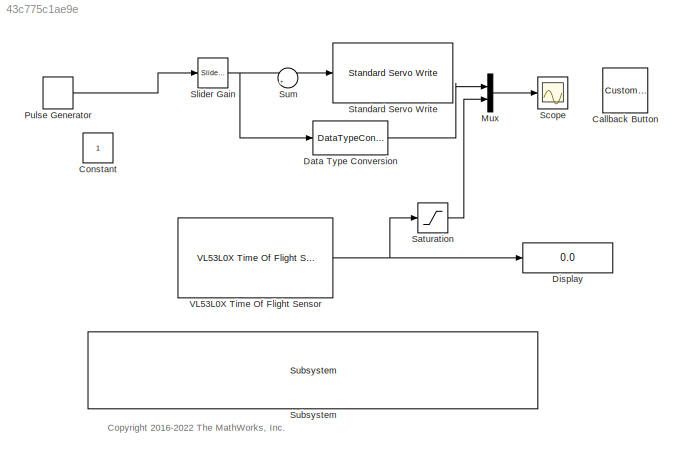
MODEL slx_43c775c1ae9e
KIND model
CONFIG AbsTol = auto
CONFIG EnableMultiTasking = off
CONFIG FixedStep = auto
CONFIG MaxStep = auto
CONFIG MinStep = auto
CONFIG RelTol = 1e-3
CONFIG SampleTimeConstraint = Unconstrained
CONFIG SolverName = FixedStepAuto
CONFIG StartTime = 0.0
CONFIG StopTime = inf
BLOCK [CustomCallbackButton] Callback Button
  Configuration = {"components":[{"name":"BackgroundImageComponent","settings":{"image":{"size":[0,0],"src":"default","srcOrientation":"Right"},"position":[0,0,1,1]}},{"name":"ButtonStateComponent","settings":{"buttonType":"momentary","clickFcn":"showExample('raspberrypi\/ReadTemperatureFromATMP102SensorExample')","onValue":1,"position":[0,0,1,1],"pressDelay":"500","pressFcn":"","repeatInterval":"0","states":[{"hor...<+1774ch>
  CustomBackgroundColor = {"color":[0.9568627451,0.9568627451,0.9568627451],"show":true}
BLOCK [Constant] Constant
BLOCK [DataTypeConversion] Data Type Conversion
  RndMeth = Floor
  SaturateOnIntegerOverflow = off
BLOCK [Display] Display
  Decimation = 1
BLOCK [Mux] Mux
  DisplayOption = bar
  Inputs = 2
BLOCK [DiscretePulseGenerator] Pulse Generator
  Amplitude = 100
  Period = 200
  PulseWidth = 100
  SampleTime = 0.1
BLOCK [Saturate] Saturation
  UpperLimit = 1500
BLOCK [Scope] Scope
  Floating = off
  NumInputPorts = 1
  ScopeSpecificationString = Simulink.scopes.TimeScopeBlockCfg('CurrentConfiguration', extmgr.ConfigurationSet(extmgr.Configuration('Core','General UI',true),extmgr.Configuration('Core','Source UI',true),extmgr.Configuration('Sources','WiredSimulink',true,'DataLogging',true),extmgr.Configuration('Visuals','Time Domain',true,'SerializedDisplays',{struct('MinYLimReal','-187.5','MaxYLimReal','1687.5','YLabelReal','','MinYLimMag'...<+1608ch>
BLOCK [Reference] Slider Gain  REF=simulink/Math
Operations/Slider
Gain
  SourceBlock = simulink/Math\nOperations/Slider\nGain
  SourceType = Slider Gain
BLOCK [Reference] Standard Servo Write  REF=raspberrypiBasiclib/Standard Servo Write
  SourceBlock = raspberrypiBasiclib/Standard Servo Write
  SourceType = Servo
BLOCK [Reference] Subsystem  REF=realtime_examples_misc/Subsystem
  SourceBlock = realtime_examples_misc/Subsystem
BLOCK [Sum] Sum
  Inputs = |++
BLOCK [Reference] VL53L0X Time Of Flight Sensor  REF=raspberrypisensorlib/VL53L0X Time Of Flight Sensor
  SourceBlock = raspberrypisensorlib/VL53L0X Time Of Flight Sensor
  SourceType = sensors.raspberrypi.VL53L0XBlock
ANNOTATION (root): <copyright redacted>
LINE Data Type Conversion:1 -> Mux:1
LINE Mux:1 -> Scope:1
LINE Pulse Generator:1 -> Slider Gain:1
LINE Saturation:1 -> Mux:2
NET Slider Gain:1 -> Data Type Conversion:1, Standard Servo Write:1
NET VL53L0X Time Of Flight Sensor:1 -> Display:1, Saturation:1
note: NET lines group one-source signal fan-out (src -> all destinations, sorted); 1:1 wires keep LINE
